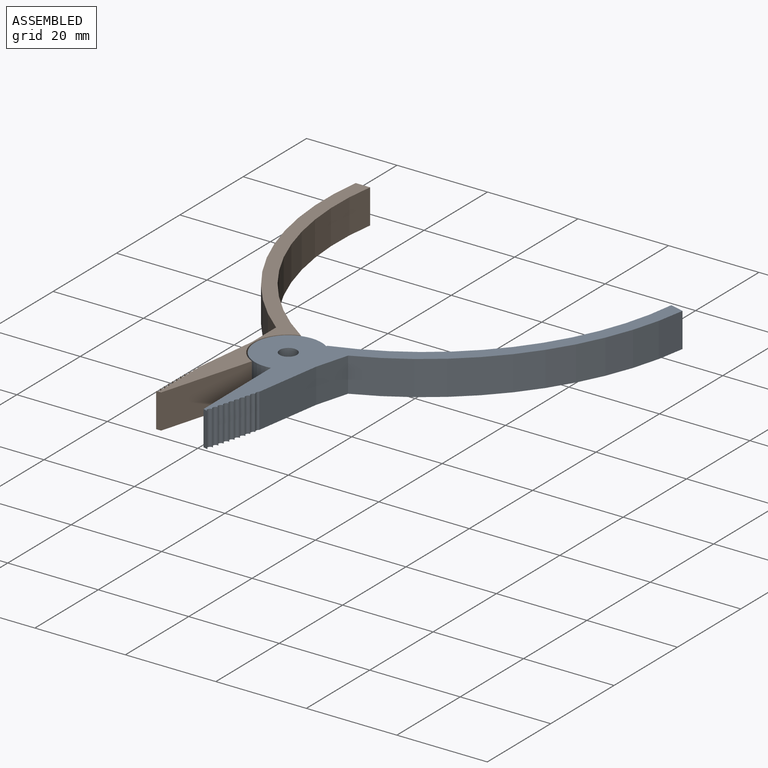
[diagram: assembled view]
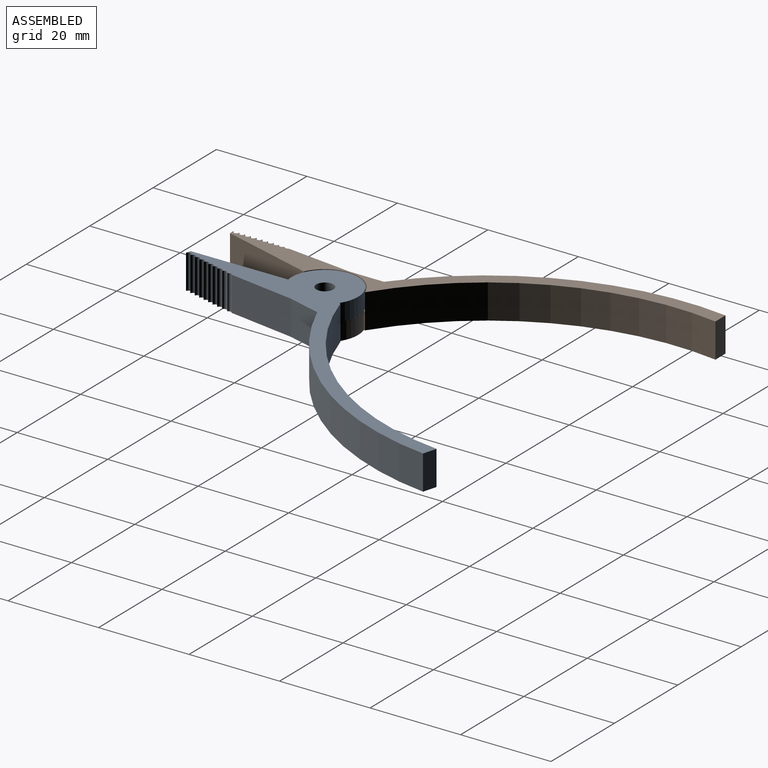
[diagram: assembled view, second angle]
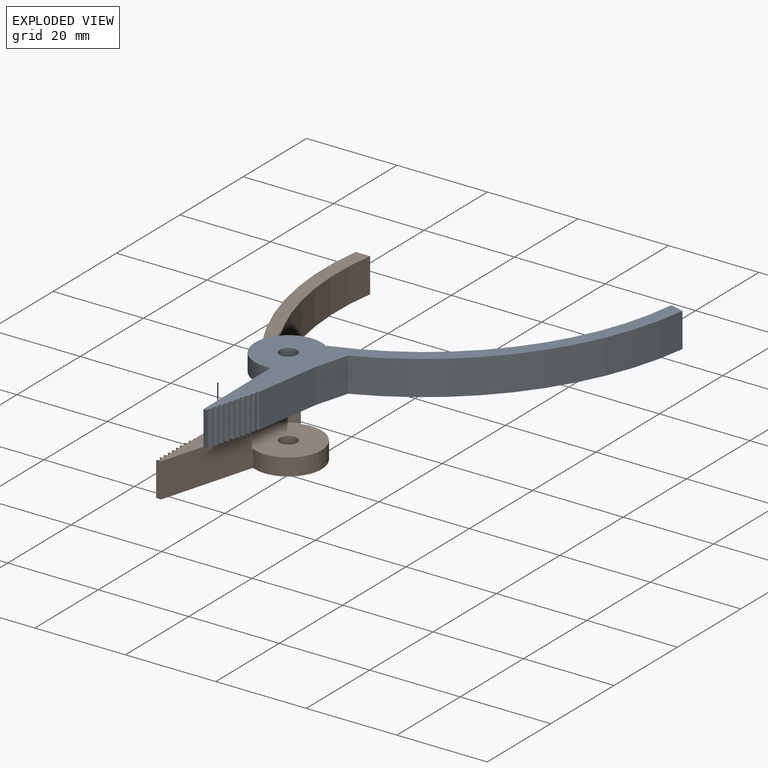
[diagram: exploded view]
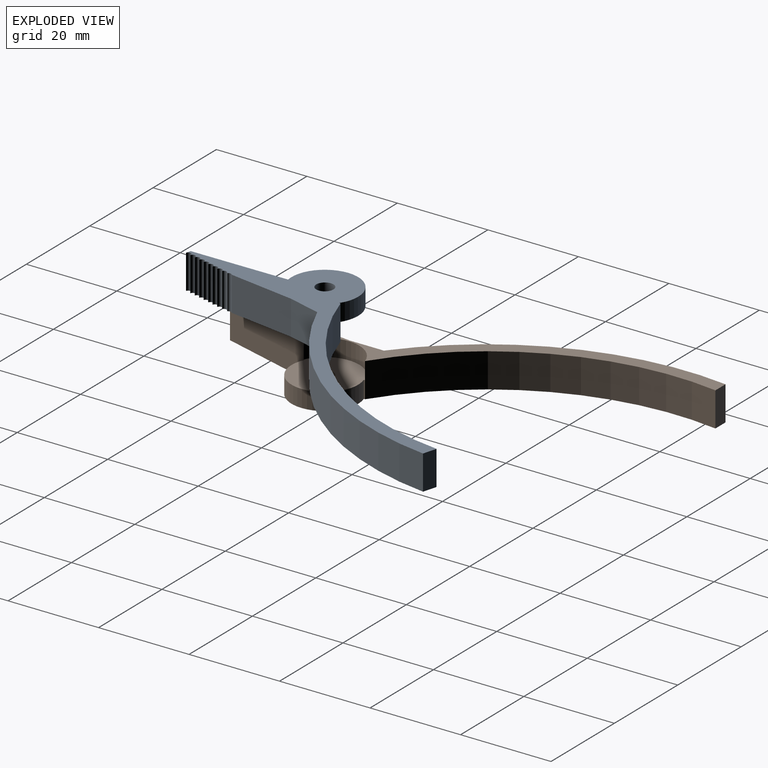
[diagram: exploded view, second angle]
ASSEMBLY  parts=2 mates=2
PART A: 27 faces, bbox 39.6x93.7x7.6 mm
  f0: plane 20.62x7.62mm, normal (0.96,0.27,0), area 162.4mm2, adj f5,f8,f13,f14,f15,f24
  f1: plane 7.62x0.05mm, normal (-0.99,-0.12,0), area 0.4mm2, adj f13,f15,f17,f19
  f2: plane 7.62x0mm, normal (-0.99,-0.12,0), area 0mm2, adj f13,f15,f18,f19
  f3: plane 7.62x0.18mm, normal (-0.99,-0.12,0), area 1.4mm2, adj f13,f15,f16,f17
  f4: plane 14.78x7.62mm, normal (-0.99,-0.12,0), area 113.4mm2, adj f9,f13,f15,f16
  f5: plane 14.99x14.73mm, normal (0,0,-1), area 163.6mm2, adj f0,f7,f8,f12,f14
  f6: cylinder r=59.55mm len=59.15mm, axis (0,0,-1), area 520.9mm2, adj f7,f11,f13,f14,f15
  f7: plane 3.81x0.27mm, normal (1,0,0), area 1mm2, adj f5,f6,f8,f13
  f8: cylinder r=7.37mm len=14.73mm, axis (0,0,-1), area 109.5mm2, adj f0,f5,f7,f13
  f9: plane 7.62x7.49mm, normal (-1,0,0), area 57.1mm2, adj f4,f10,f13,f15
  f10: cylinder r=63.51mm len=58.93mm, axis (0,0,-1), area 506.7mm2, adj f9,f11,f13,f15
  f11: plane 7.62x3.18mm, normal (0,-1,0), area 24.2mm2, adj f6,f10,f13,f15
  f12: cylinder r=1.91mm len=3.81mm, axis (0,0,-1), area 45.6mm2, adj f5,f13
  f13: plane 93.7x39.61mm, normal (0,0,1), area 463.7mm2, adj f0,f1,f2,f3,f4,f6,f7,f8
  f14: cylinder r=7.62mm len=14.17mm, axis (0,0,1), area 69.7mm2, adj f0,f5,f6,f15
  f15: plane 93.7x29.94mm, normal (0,0,-1), area 300mm2, adj f0,f1,f2,f3,f4,f6,f9,f10
  f16: cylinder r=0.64mm len=7.62mm, axis (0,0,1), area 8.6mm2, adj f3,f4,f13,f15
  f17: cylinder r=0.64mm len=7.62mm, axis (0,0,1), area 11.3mm2, adj f1,f3,f13,f15
  f18: cylinder r=0.64mm len=7.62mm, axis (0,0,1), area 15mm2, adj f2,f13,f15,f26
  f19: cylinder r=0.64mm len=7.62mm, axis (0,0,1), area 13.7mm2, adj f1,f2,f13,f15
  f20: cylinder r=0.64mm len=7.62mm, axis (0,0,1), area 15.2mm2, adj f13,f15,f25,f26
  f21: cylinder r=0.64mm len=7.62mm, axis (0,0,1), area 15.2mm2, adj f13,f15,f23,f25
  f22: cylinder r=0.64mm len=7.62mm, axis (0,0,1), area 14.8mm2, adj f13,f15,f23,f24
  f23: cylinder r=0.64mm len=7.62mm, axis (0,0,1), area 15.2mm2, adj f13,f15,f21,f22
  f24: plane 7.62x1.1mm, normal (0,1,0), area 8.4mm2, adj f0,f13,f15,f22
  f25: cylinder r=0.64mm len=7.62mm, axis (0,0,1), area 15.2mm2, adj f13,f15,f20,f21
  f26: cylinder r=0.64mm len=7.62mm, axis (0,0,1), area 15.2mm2, adj f13,f15,f18,f20
PART B: same geometry as A
PLACE A rot(axis=(0,0,1),164.4deg) t=(0,0,3.81)mm
PLACE B rot(axis=(1,0,0),180deg) t=(0,0,3.81)mm
MATE planar A.f5 <-> B.f5  axis (0,0,-1) through (4.13,6.25,3.81)mm
MATE revolute A.f8 <-> B.f8  axis (0,0,-1) through (0,0,3.81)mm
